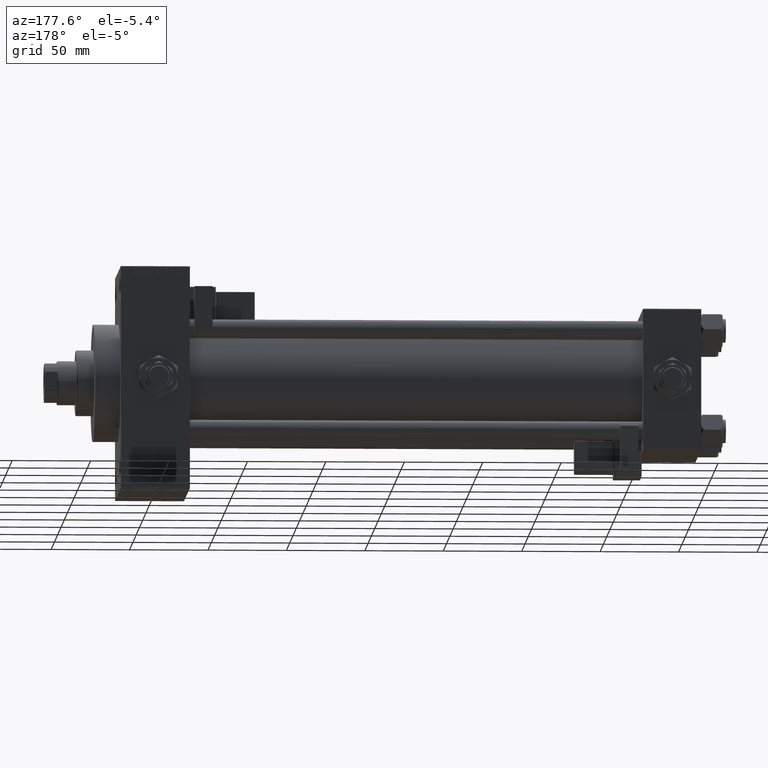
[diagram: clean part render]
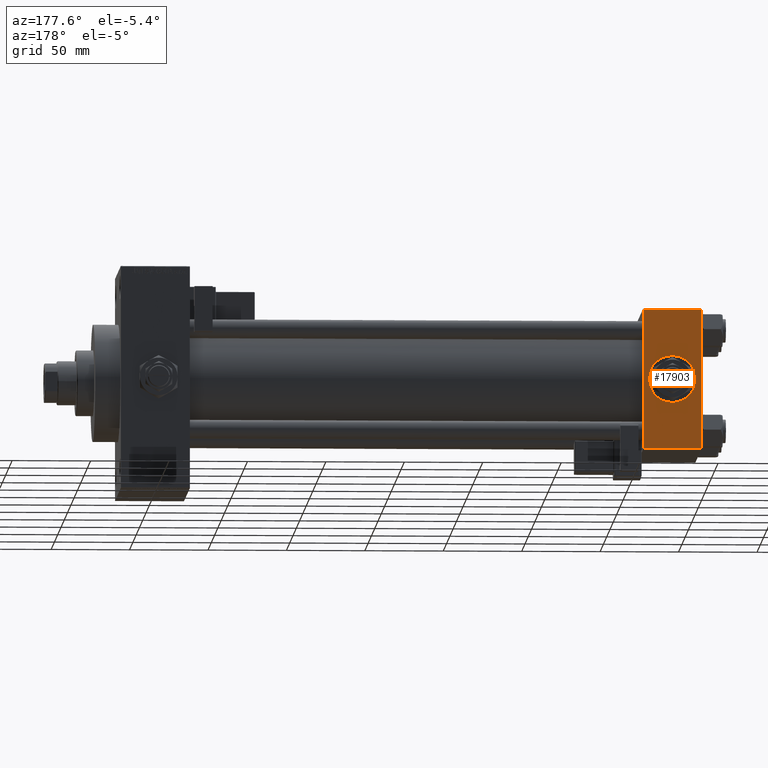
[diagram: same view with one face highlighted and labeled with its STEP entity id]
A machine part, auxiliary view. The second image highlights one B-rep face of the part: STEP entity #17903.
In plain terms, the highlighted planar face has unit normal (0, 1, 0).
Its self-contained STEP definition (entity closure, byte-faithful):
#250 = CARTESIAN_POINT ( 'NONE',  ( 18.50000000000000000, 44.99999999999998579, 15.00000000000000178 ) ) ;
#1424 = CARTESIAN_POINT ( 'NONE',  ( 37.00000000000000000, 44.99999999999998579, 44.50000000000001421 ) ) ;
#3794 = CARTESIAN_POINT ( 'NONE',  ( 37.00000000000000000, 44.99999999999998579, -44.49999999999995737 ) ) ;
#6950 = CARTESIAN_POINT ( 'NONE',  ( 37.00000000000000000, 44.99999999999998579, 45.00000000000001421 ) ) ;
#7088 = EDGE_LOOP ( 'NONE', ( #15334, #41591, #35278, #16529 ) ) ;
#8058 = PLANE ( 'NONE',  #25560 ) ;
#10689 = CARTESIAN_POINT ( 'NONE',  ( 0.000000000000000000, 44.99999999999998579, 45.00000000000001421 ) ) ;
#12967 = VERTEX_POINT ( 'NONE', #38151 ) ;
#14175 = VECTOR ( 'NONE', #24208, 1000.000000000000000 ) ;
#14794 = VERTEX_POINT ( 'NONE', #3794 ) ;
#15334 = ORIENTED_EDGE ( 'NONE', *, *, #38867, .T. ) ;
#16074 = EDGE_CURVE ( 'NONE', #12967, #17672, #19291, .T. ) ;
#16529 = ORIENTED_EDGE ( 'NONE', *, *, #47614, .T. ) ;
#17326 = DIRECTION ( 'NONE',  ( 1.000000000000000000, 0.000000000000000000, 0.000000000000000000 ) ) ;
#17672 = VERTEX_POINT ( 'NONE', #32905 ) ;
#17903 = ADVANCED_FACE ( 'NONE', ( #31526, #32284 ), #8058, .T. ) ;
#18195 = AXIS2_PLACEMENT_3D ( 'NONE', #29161, #48937, #29410 ) ;
#19291 = LINE ( 'NONE', #10689, #47923 ) ;
#19802 = DIRECTION ( 'NONE',  ( -0.000000000000000000, 1.000000000000000000, 0.000000000000000000 ) ) ;
#20821 = LINE ( 'NONE', #40072, #14175 ) ;
#22294 = VERTEX_POINT ( 'NONE', #250 ) ;
#24208 = DIRECTION ( 'NONE',  ( -1.000000000000000000, 0.000000000000000000, 0.000000000000000000 ) ) ;
#24526 = EDGE_CURVE ( 'NONE', #40946, #22294, #34850, .T. ) ;
#25560 = AXIS2_PLACEMENT_3D ( 'NONE', #35166, #19802, #31275 ) ;
#26968 = ORIENTED_EDGE ( 'NONE', *, *, #30961, .F. ) ;
#27022 = LINE ( 'NONE', #6950, #50054 ) ;
#28642 = EDGE_CURVE ( 'NONE', #14794, #17672, #20821, .T. ) ;
#29161 = CARTESIAN_POINT ( 'NONE',  ( 18.50000000000000000, 44.99999999999998579, 0.000000000000000000 ) ) ;
#29410 = DIRECTION ( 'NONE',  ( 0.000000000000000000, 0.000000000000000000, 1.000000000000000000 ) ) ;
#29921 = AXIS2_PLACEMENT_3D ( 'NONE', #35071, #31682, #42607 ) ;
#30131 = DIRECTION ( 'NONE',  ( 0.000000000000000000, 0.000000000000000000, -1.000000000000000000 ) ) ;
#30961 = EDGE_CURVE ( 'NONE', #22294, #40946, #49878, .T. ) ;
#31275 = DIRECTION ( 'NONE',  ( 0.000000000000000000, -0.000000000000000000, 1.000000000000000000 ) ) ;
#31526 = FACE_BOUND ( 'NONE', #41843, .T. ) ;
#31682 = DIRECTION ( 'NONE',  ( 0.000000000000000000, 1.000000000000000000, 0.000000000000000000 ) ) ;
#32284 = FACE_OUTER_BOUND ( 'NONE', #7088, .T. ) ;
#32905 = CARTESIAN_POINT ( 'NONE',  ( 0.000000000000000000, 44.99999999999998579, -44.49999999999995737 ) ) ;
#34850 = CIRCLE ( 'NONE', #18195, 15.00000000000000178 ) ;
#35071 = CARTESIAN_POINT ( 'NONE',  ( 18.50000000000000000, 44.99999999999998579, 0.000000000000000000 ) ) ;
#35166 = CARTESIAN_POINT ( 'NONE',  ( 37.00000000000000000, 44.99999999999998579, 45.00000000000001421 ) ) ;
#35278 = ORIENTED_EDGE ( 'NONE', *, *, #16074, .F. ) ;
#37859 = LINE ( 'NONE', #1424, #41934 ) ;
#38024 = DIRECTION ( 'NONE',  ( 0.000000000000000000, 0.000000000000000000, -1.000000000000000000 ) ) ;
#38151 = CARTESIAN_POINT ( 'NONE',  ( 0.000000000000000000, 44.99999999999998579, 44.50000000000001421 ) ) ;
#38867 = EDGE_CURVE ( 'NONE', #47985, #14794, #27022, .T. ) ;
#40072 = CARTESIAN_POINT ( 'NONE',  ( 37.00000000000000000, 44.99999999999998579, -44.49999999999998579 ) ) ;
#40428 = ORIENTED_EDGE ( 'NONE', *, *, #24526, .F. ) ;
#40946 = VERTEX_POINT ( 'NONE', #48691 ) ;
#41591 = ORIENTED_EDGE ( 'NONE', *, *, #28642, .T. ) ;
#41843 = EDGE_LOOP ( 'NONE', ( #26968, #40428 ) ) ;
#41934 = VECTOR ( 'NONE', #17326, 1000.000000000000000 ) ;
#42607 = DIRECTION ( 'NONE',  ( 0.000000000000000000, 0.000000000000000000, 1.000000000000000000 ) ) ;
#44069 = CARTESIAN_POINT ( 'NONE',  ( 37.00000000000000000, 44.99999999999998579, 44.50000000000001421 ) ) ;
#47614 = EDGE_CURVE ( 'NONE', #12967, #47985, #37859, .T. ) ;
#47923 = VECTOR ( 'NONE', #38024, 1000.000000000000000 ) ;
#47985 = VERTEX_POINT ( 'NONE', #44069 ) ;
#48691 = CARTESIAN_POINT ( 'NONE',  ( 18.50000000000000355, 44.99999999999998579, -15.00000000000000178 ) ) ;
#48937 = DIRECTION ( 'NONE',  ( 0.000000000000000000, 1.000000000000000000, 0.000000000000000000 ) ) ;
#49878 = CIRCLE ( 'NONE', #29921, 15.00000000000000178 ) ;
#50054 = VECTOR ( 'NONE', #30131, 1000.000000000000000 ) ;